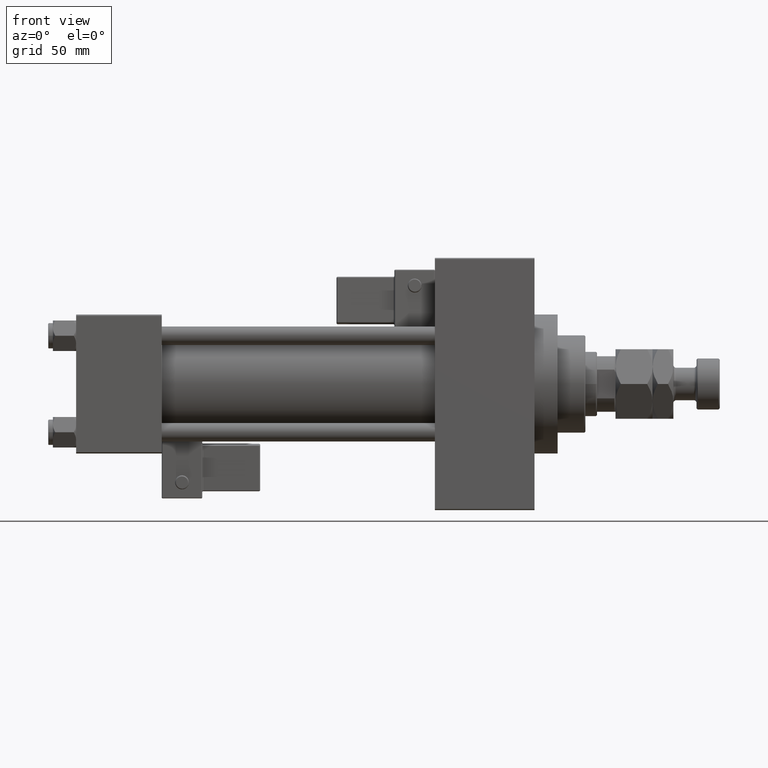
[diagram: clean part render]
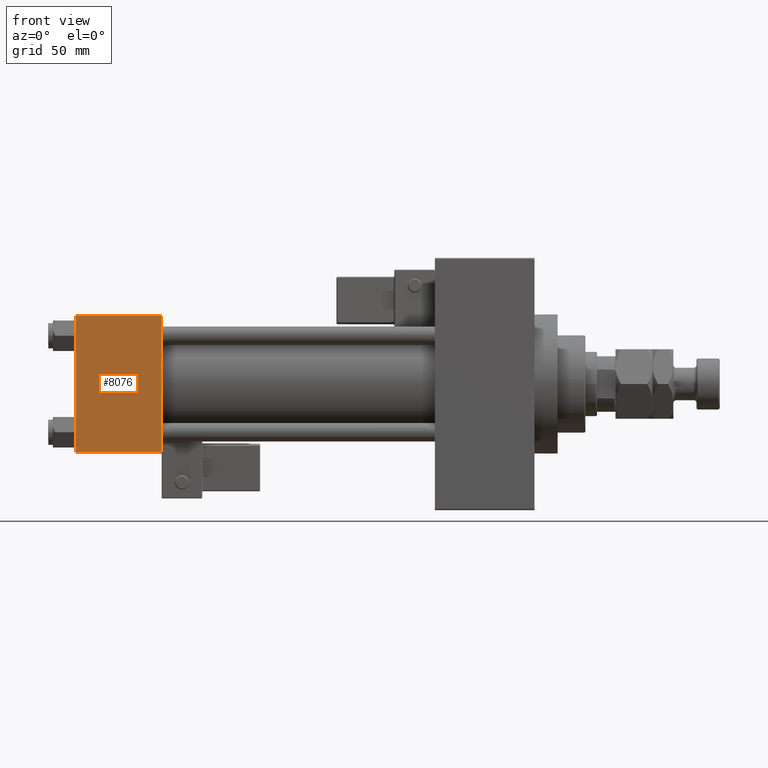
[diagram: same view with one face highlighted and labeled with its STEP entity id]
A machine part, front view. The second image highlights one B-rep face of the part: STEP entity #8076.
In plain terms, the highlighted planar face has unit normal (0, 1, 0).
Its self-contained STEP definition (entity closure, byte-faithful):
#1034 = CARTESIAN_POINT ( 'NONE',  ( 0.000000000000000000, -30.00000000000000000, 29.49999999999999289 ) ) ;
#4600 = DIRECTION ( 'NONE',  ( -1.000000000000000000, 0.000000000000000000, 0.000000000000000000 ) ) ;
#5790 = CARTESIAN_POINT ( 'NONE',  ( 37.00000000000000000, -30.00000000000000000, 29.99999999999999289 ) ) ;
#8076 = ADVANCED_FACE ( 'NONE', ( #33864 ), #9683, .F. ) ;
#8482 = LINE ( 'NONE', #29035, #49155 ) ;
#9683 = PLANE ( 'NONE',  #39015 ) ;
#9816 = EDGE_LOOP ( 'NONE', ( #26590, #26852, #49145, #13973 ) ) ;
#13812 = EDGE_CURVE ( 'NONE', #24004, #42779, #8482, .T. ) ;
#13973 = ORIENTED_EDGE ( 'NONE', *, *, #13812, .T. ) ;
#14569 = VECTOR ( 'NONE', #21320, 1000.000000000000000 ) ;
#21320 = DIRECTION ( 'NONE',  ( 0.000000000000000000, 0.000000000000000000, -1.000000000000000000 ) ) ;
#23598 = LINE ( 'NONE', #43856, #36372 ) ;
#24004 = VERTEX_POINT ( 'NONE', #37878 ) ;
#24975 = LINE ( 'NONE', #33268, #14569 ) ;
#25932 = DIRECTION ( 'NONE',  ( 1.000000000000000000, 0.000000000000000000, 0.000000000000000000 ) ) ;
#26349 = EDGE_CURVE ( 'NONE', #32185, #44869, #33194, .T. ) ;
#26590 = ORIENTED_EDGE ( 'NONE', *, *, #34829, .T. ) ;
#26852 = ORIENTED_EDGE ( 'NONE', *, *, #26349, .T. ) ;
#28398 = EDGE_CURVE ( 'NONE', #24004, #44869, #24975, .T. ) ;
#29035 = CARTESIAN_POINT ( 'NONE',  ( 37.00000000000000000, -30.00000000000000000, 29.49999999999999289 ) ) ;
#29310 = CARTESIAN_POINT ( 'NONE',  ( 37.00000000000000000, -30.00000000000000000, -29.50000000000001776 ) ) ;
#32185 = VERTEX_POINT ( 'NONE', #37965 ) ;
#33194 = LINE ( 'NONE', #29310, #46888 ) ;
#33268 = CARTESIAN_POINT ( 'NONE',  ( 37.00000000000000000, -30.00000000000000000, 29.99999999999999289 ) ) ;
#33864 = FACE_OUTER_BOUND ( 'NONE', #9816, .T. ) ;
#34829 = EDGE_CURVE ( 'NONE', #42779, #32185, #23598, .T. ) ;
#36372 = VECTOR ( 'NONE', #51145, 1000.000000000000000 ) ;
#37878 = CARTESIAN_POINT ( 'NONE',  ( 37.00000000000000000, -30.00000000000000000, 29.49999999999999289 ) ) ;
#37965 = CARTESIAN_POINT ( 'NONE',  ( 0.000000000000000000, -30.00000000000000000, -29.50000000000001776 ) ) ;
#39015 = AXIS2_PLACEMENT_3D ( 'NONE', #5790, #45568, #41400 ) ;
#40495 = CARTESIAN_POINT ( 'NONE',  ( 37.00000000000000000, -30.00000000000000000, -29.50000000000001776 ) ) ;
#41400 = DIRECTION ( 'NONE',  ( 0.000000000000000000, -0.000000000000000000, 1.000000000000000000 ) ) ;
#42779 = VERTEX_POINT ( 'NONE', #1034 ) ;
#43856 = CARTESIAN_POINT ( 'NONE',  ( 0.000000000000000000, -30.00000000000000000, 29.99999999999999289 ) ) ;
#44869 = VERTEX_POINT ( 'NONE', #40495 ) ;
#45568 = DIRECTION ( 'NONE',  ( -0.000000000000000000, 1.000000000000000000, 0.000000000000000000 ) ) ;
#46888 = VECTOR ( 'NONE', #25932, 1000.000000000000000 ) ;
#49145 = ORIENTED_EDGE ( 'NONE', *, *, #28398, .F. ) ;
#49155 = VECTOR ( 'NONE', #4600, 1000.000000000000000 ) ;
#51145 = DIRECTION ( 'NONE',  ( 0.000000000000000000, 0.000000000000000000, -1.000000000000000000 ) ) ;